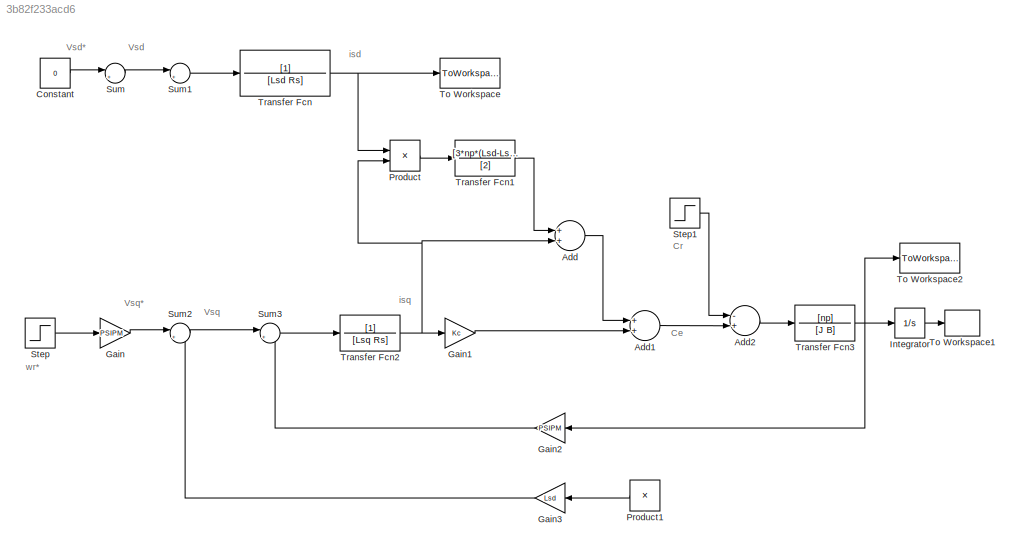
MODEL slx_3b82f233acd6
KIND model
CONFIG AbsTol = auto
CONFIG EnableMultiTasking = off
CONFIG FixedStep = auto
CONFIG MaxStep = auto
CONFIG MinStep = auto
CONFIG RelTol = 1e-3
CONFIG SampleTimeConstraint = Unconstrained
CONFIG Solver = VariableStepAuto
CONFIG SolverName = VariableStepAuto
CONFIG StartTime = 0.0
CONFIG StopTime = 10.0
BLOCK [Sum] Add
  InputSameDT = off
  OutDataTypeStr = Inherit: Inherit via internal rule
  Ports = [2, 1]
  SaturateOnIntegerOverflow = off
BLOCK [Sum] Add1
  InputSameDT = off
  OutDataTypeStr = Inherit: Inherit via internal rule
  Ports = [2, 1]
  SaturateOnIntegerOverflow = off
BLOCK [Sum] Add2
  InputSameDT = off
  Inputs = -+
  OutDataTypeStr = Inherit: Inherit via internal rule
  Ports = [2, 1]
  SaturateOnIntegerOverflow = off
BLOCK [Constant] Constant
  Value = 0
BLOCK [Gain] Gain
  Gain = PSIPM
  Multiplication = Matrix(K*u)
  OutDataTypeStr = Inherit: Inherit via internal rule
  ParamDataTypeStr = Inherit: Inherit via internal rule
  SaturateOnIntegerOverflow = off
BLOCK [Gain] Gain1
  Gain = Kc
  OutDataTypeStr = Inherit: Inherit via internal rule
  ParamDataTypeStr = Inherit: Inherit via internal rule
  SaturateOnIntegerOverflow = off
BLOCK [Gain] Gain2
  Gain = PSIPM
  OutDataTypeStr = Inherit: Inherit via internal rule
  ParamDataTypeStr = Inherit: Inherit via internal rule
  SaturateOnIntegerOverflow = off
BLOCK [Gain] Gain3
  Gain = Lsd
  OutDataTypeStr = Inherit: Inherit via internal rule
  ParamDataTypeStr = Inherit: Inherit via internal rule
  SaturateOnIntegerOverflow = off
BLOCK [Integrator] Integrator
  Ports = [1, 1]
BLOCK [Product] Product
  InputSameDT = off
  OutDataTypeStr = Inherit: Inherit via internal rule
  Ports = [2, 1]
  RndMeth = Floor
  SaturateOnIntegerOverflow = off
BLOCK [Product] Product1
  InputSameDT = off
  OutDataTypeStr = Inherit: Inherit via internal rule
  Ports = [2, 1]
  RndMeth = Floor
  SaturateOnIntegerOverflow = off
BLOCK [Step] Step
  After = wrr
  SampleTime = 0
BLOCK [Step] Step1
  After = Crn
  SampleTime = 0
BLOCK [Sum] Sum
  IconShape = round
  InputSameDT = off
  Inputs = |+-
  OutDataTypeStr = Inherit: Inherit via internal rule
  Ports = [2, 1]
  SaturateOnIntegerOverflow = off
BLOCK [Sum] Sum1
  IconShape = round
  InputSameDT = off
  Inputs = |++
  OutDataTypeStr = Inherit: Inherit via internal rule
  Ports = [2, 1]
  SaturateOnIntegerOverflow = off
BLOCK [Sum] Sum2
  IconShape = round
  InputSameDT = off
  Inputs = |++
  OutDataTypeStr = Inherit: Inherit via internal rule
  Ports = [2, 1]
  SaturateOnIntegerOverflow = off
BLOCK [Sum] Sum3
  IconShape = round
  InputSameDT = off
  Inputs = |+-
  OutDataTypeStr = Inherit: Inherit via internal rule
  Ports = [2, 1]
  SaturateOnIntegerOverflow = off
BLOCK [ToWorkspace] To Workspace
  MaxDataPoints = inf
  Ports = [1]
  SampleTime = -1
  SaveFormat = Timeseries
  VariableName = isd
BLOCK [ToWorkspace] To Workspace1
  FixptAsFi = on
  MaxDataPoints = inf
  Ports = [1]
  SampleTime = -1
  Save2DSignal = 3-D array (concatenate along third dimension)
  SaveFormat = Timeseries
  VariableName = tetar
BLOCK [ToWorkspace] To Workspace2
  FixptAsFi = on
  MaxDataPoints = inf
  Ports = [1]
  SampleTime = -1
  Save2DSignal = 3-D array (concatenate along third dimension)
  SaveFormat = Timeseries
  VariableName = wr
BLOCK [TransferFcn] Transfer Fcn
  Denominator = [Lsd Rs]
BLOCK [TransferFcn] Transfer Fcn1
  Denominator = [2]
  Numerator = [3*np*(Lsd-Lsq)]
BLOCK [TransferFcn] Transfer Fcn2
  Denominator = [Lsq Rs]
BLOCK [TransferFcn] Transfer Fcn3
  Denominator = [J B]
  Numerator = [np]
ANNOTATION (root): Ce
ANNOTATION (root): Cr
ANNOTATION (root): Vsd
ANNOTATION (root): Vsd*
ANNOTATION (root): Vsq
ANNOTATION (root): Vsq*
ANNOTATION (root): isd
ANNOTATION (root): isq
ANNOTATION (root): wr*
LINE Add1:1 -> Add2:2
LINE Add2:1 -> Transfer Fcn3:1
LINE Add:1 -> Add1:1
LINE Constant:1 -> Sum:1
LINE Gain1:1 -> Add1:2
LINE Gain2:1 -> Sum3:2
LINE Gain3:1 -> Sum2:2
LINE Gain:1 -> Sum2:1
LINE Integrator:1 -> To Workspace1:1
LINE Product1:1 -> Gain3:1
LINE Product:1 -> Transfer Fcn1:1
LINE Step1:1 -> Add2:1
LINE Step:1 -> Gain:1
LINE Sum1:1 -> Transfer Fcn:1
LINE Sum2:1 -> Sum3:1
LINE Sum3:1 -> Transfer Fcn2:1
LINE Sum:1 -> Sum1:1
LINE Transfer Fcn1:1 -> Add:1
NET Transfer Fcn2:1 -> Add:2, Gain1:1, Product:2
NET Transfer Fcn3:1 -> Gain2:1, Integrator:1, To Workspace2:1
NET Transfer Fcn:1 -> Product:1, To Workspace:1
note: NET lines group one-source signal fan-out (src -> all destinations, sorted); 1:1 wires keep LINE
